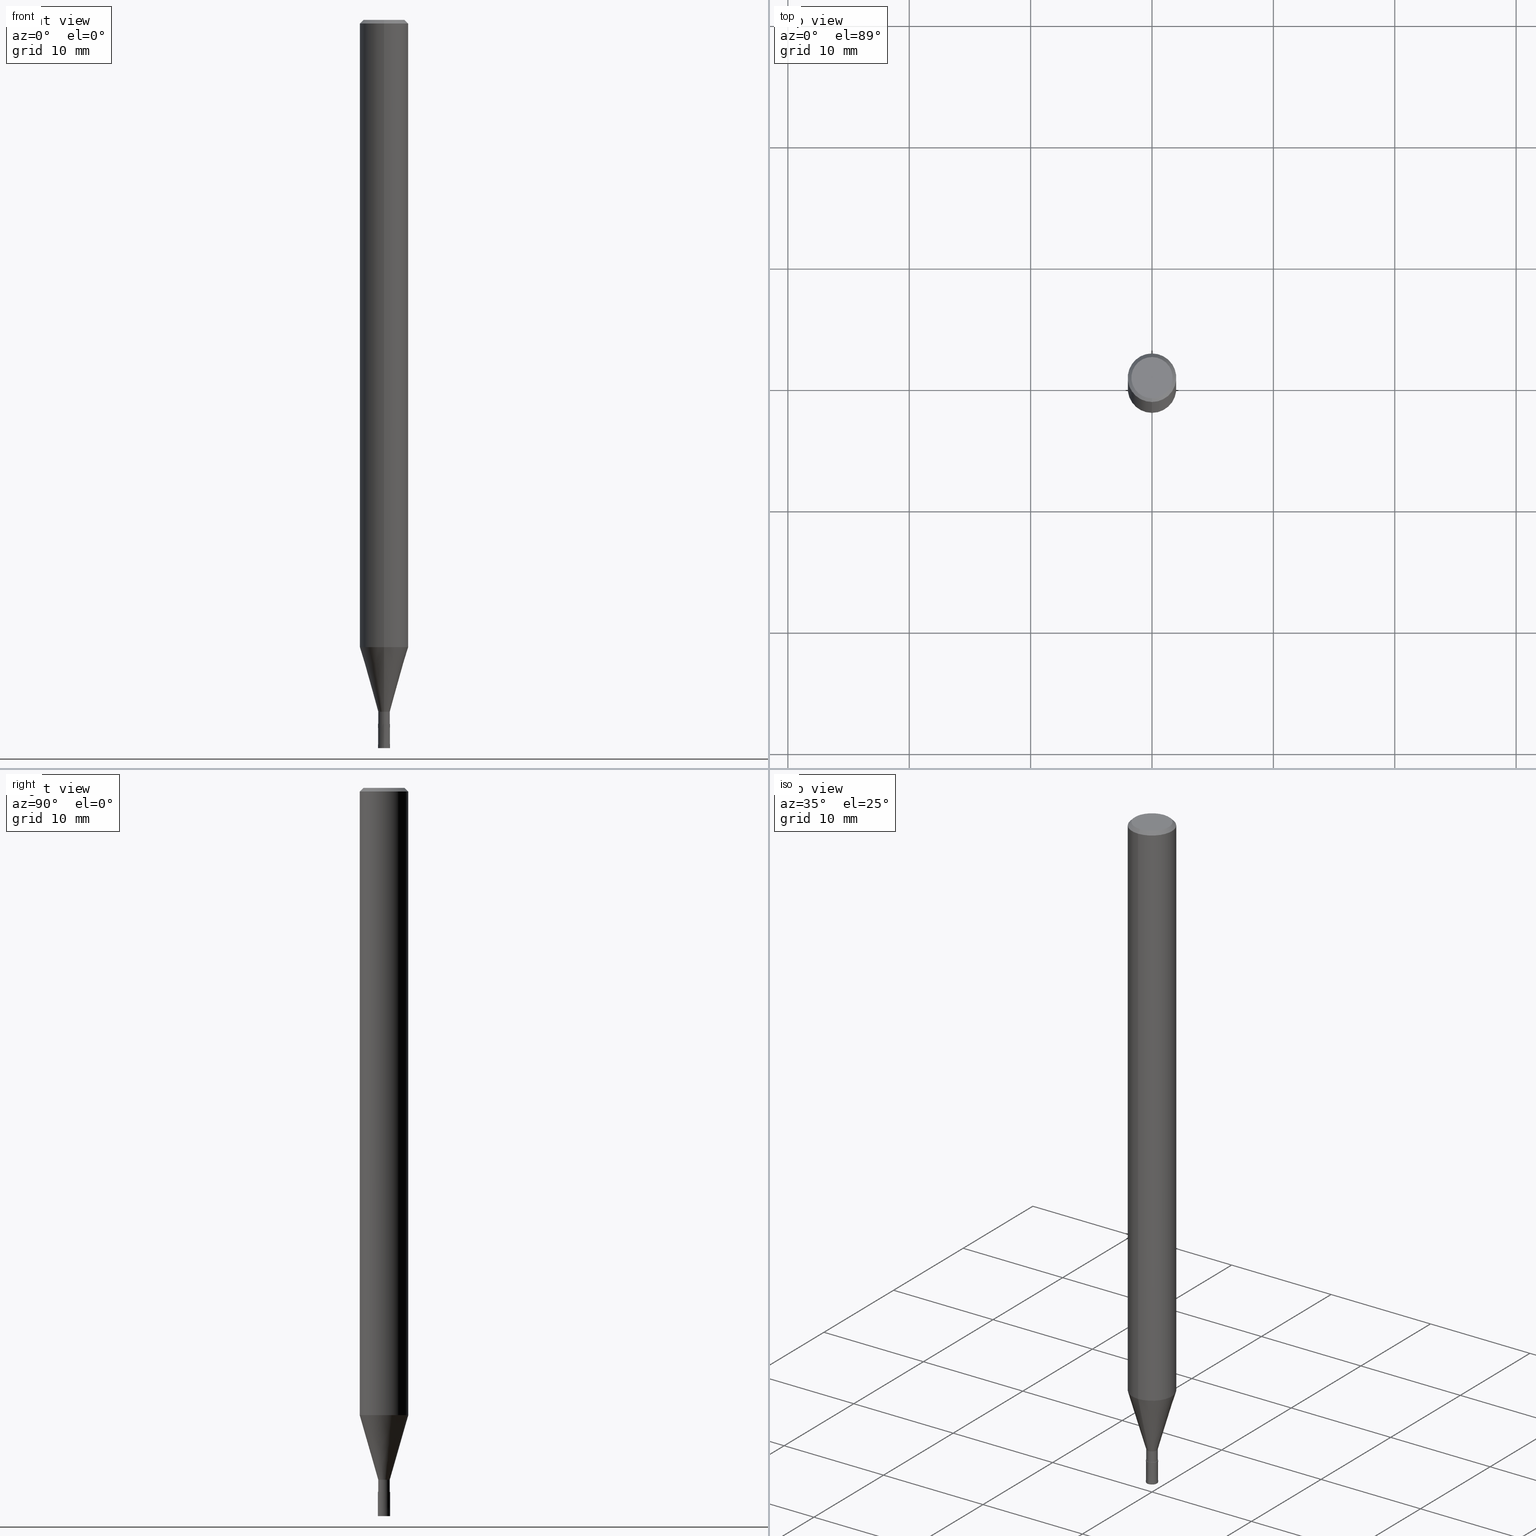
[diagram: canonical four-view strip — front | top / right | iso, engineering-drawing reading convention]
A machine part, canonical four-view strip (front | top / right | iso — engineering-drawing reading convention). The complete STEP part file that produces these views, byte-faithful:
ISO-10303-21;
HEADER;
FILE_DESCRIPTION(('no description'),'unknown implementation level');
FILE_NAME('DLC-AZS3010-030-Huellk.stp','  ',('CIMSOURCE GmbH'),('CADClick - KiM GmbH - www.kimweb.de'),'unknown preprocess','ACIS','unknown authorization');
FILE_SCHEMA(('automotive_design'));
ENDSEC;
DATA;
#1=MECHANICAL_DESIGN_GEOMETRIC_PRESENTATION_REPRESENTATION(' ',(#14,#15,#16,#17,#18,#19,#20,#21,#22,#23,#24,#25,#26,#27,#28,#29,#30,#31,#32,#33,#34,#35,#36,#37,#38,#39,#40,#41,#42,#43,#44,#45,#46,#47,#48,#49,#50,#51,#52,#53,#54,#55,#56,#57,#58,#59,#60,#61,#62,#63,#64,#65,#66,#67,#68,#69,#70,#71,#72),#10);
#2=PRODUCT_DEFINITION_CONTEXT('',#73,'design');
#3=APPLICATION_PROTOCOL_DEFINITION('INTERNATIONAL STANDARD','automotive_design',1994,#73);
#4=PRODUCT_CATEGORY_RELATIONSHIP('NONE','NONE',#74,#75);
#5=SHAPE_DEFINITION_REPRESENTATION(#76,#77);
#6=PRODUCT_DEFINITION_CONTEXT('',#78,'design');
#7=APPLICATION_PROTOCOL_DEFINITION('INTERNATIONAL STANDARD','automotive_design',1994,#78);
#8=PRODUCT_CATEGORY_RELATIONSHIP('NONE','NONE',#79,#80);
#9=SHAPE_DEFINITION_REPRESENTATION(#81,#82);
#10= (GEOMETRIC_REPRESENTATION_CONTEXT(3)GLOBAL_UNCERTAINTY_ASSIGNED_CONTEXT((#85))GLOBAL_UNIT_ASSIGNED_CONTEXT((#87,#88,#89))REPRESENTATION_CONTEXT('NONE','WORKSPACE'));
#14=STYLED_ITEM('',(#91),#92);
#15=STYLED_ITEM('',(#93),#94);
#16=STYLED_ITEM('',(#95),#96);
#17=STYLED_ITEM('',(#97),#98);
#18=STYLED_ITEM('',(#99),#100);
#19=STYLED_ITEM('',(#101),#102);
#20=STYLED_ITEM('',(#103),#104);
#21=STYLED_ITEM('',(#105),#106);
#22=STYLED_ITEM('',(#107),#108);
#23=STYLED_ITEM('',(#109),#110);
#24=STYLED_ITEM('',(#111),#112);
#25=STYLED_ITEM('',(#113),#114);
#26=STYLED_ITEM('',(#115),#116);
#27=STYLED_ITEM('',(#117),#118);
#28=STYLED_ITEM('',(#119),#120);
#29=STYLED_ITEM('',(#121),#122);
#30=STYLED_ITEM('',(#123),#124);
#31=STYLED_ITEM('',(#125),#126);
#32=STYLED_ITEM('',(#127),#128);
#33=STYLED_ITEM('',(#129),#130);
#34=STYLED_ITEM('',(#131),#132);
#35=STYLED_ITEM('',(#133),#134);
#36=STYLED_ITEM('',(#135),#136);
#37=STYLED_ITEM('',(#137),#138);
#38=STYLED_ITEM('',(#139),#140);
#39=STYLED_ITEM('',(#141),#142);
#40=STYLED_ITEM('',(#143),#144);
#41=STYLED_ITEM('',(#145),#146);
#42=STYLED_ITEM('',(#147),#148);
#43=STYLED_ITEM('',(#149),#150);
#44=STYLED_ITEM('',(#151),#152);
#45=STYLED_ITEM('',(#153),#154);
#46=STYLED_ITEM('',(#155),#156);
#47=STYLED_ITEM('',(#157),#158);
#48=STYLED_ITEM('',(#159),#160);
#49=STYLED_ITEM('',(#161),#162);
#50=STYLED_ITEM('',(#163),#164);
#51=STYLED_ITEM('',(#165),#166);
#52=STYLED_ITEM('',(#167),#168);
#53=STYLED_ITEM('',(#169),#170);
#54=STYLED_ITEM('',(#171),#172);
#55=STYLED_ITEM('',(#173),#174);
#56=STYLED_ITEM('',(#175),#176);
#57=STYLED_ITEM('',(#177),#178);
#58=STYLED_ITEM('',(#179),#180);
#59=STYLED_ITEM('',(#181),#182);
#60=STYLED_ITEM('',(#183),#184);
#61=STYLED_ITEM('',(#185),#186);
#62=STYLED_ITEM('',(#187),#188);
#63=STYLED_ITEM('',(#189),#190);
#64=STYLED_ITEM('',(#191),#192);
#65=STYLED_ITEM('',(#193),#194);
#66=STYLED_ITEM('',(#195),#196);
#67=STYLED_ITEM('',(#197),#198);
#68=STYLED_ITEM('',(#199),#200);
#69=STYLED_ITEM('',(#201),#202);
#70=STYLED_ITEM('',(#203),#204);
#71=STYLED_ITEM('',(#205),#206);
#72=STYLED_ITEM('',(#207),#208);
#73=APPLICATION_CONTEXT(' ');
#74=PRODUCT_CATEGORY('part','NONE');
#75=PRODUCT_RELATED_PRODUCT_CATEGORY('detail',' ',(#209));
#76=PRODUCT_DEFINITION_SHAPE('NONE','NONE',#210);
#77=ADVANCED_BREP_SHAPE_REPRESENTATION('1',(#132,#211),#10);
#78=APPLICATION_CONTEXT(' ');
#79=PRODUCT_CATEGORY('part','NONE');
#80=PRODUCT_RELATED_PRODUCT_CATEGORY('detail',' ',(#212));
#81=PRODUCT_DEFINITION_SHAPE('NONE','NONE',#213);
#82=ADVANCED_BREP_SHAPE_REPRESENTATION('2',(#118,#214),#10);
#85=UNCERTAINTY_MEASURE_WITH_UNIT(LENGTH_MEASURE(1.0E-006),#87,'','');
#87= (CONVERSION_BASED_UNIT('MILLIMETRE',#217)LENGTH_UNIT()NAMED_UNIT(#220));
#88= (NAMED_UNIT(#222)PLANE_ANGLE_UNIT()SI_UNIT($,.RADIAN.));
#89= (NAMED_UNIT(#222)SOLID_ANGLE_UNIT()SI_UNIT($,.STERADIAN.));
#91=PRESENTATION_STYLE_ASSIGNMENT((#228));
#92=ADVANCED_FACE('',(#229),#230,.T.);
#93=PRESENTATION_STYLE_ASSIGNMENT((#231));
#94=ADVANCED_FACE('',(#232),#233,.T.);
#95=PRESENTATION_STYLE_ASSIGNMENT((#234));
#96=EDGE_CURVE('',#140,#158,#235,.T.);
#97=PRESENTATION_STYLE_ASSIGNMENT((#236));
#98=EDGE_CURVE('',#134,#122,#237,.T.);
#99=PRESENTATION_STYLE_ASSIGNMENT((#238));
#100=VERTEX_POINT('',#239);
#101=PRESENTATION_STYLE_ASSIGNMENT((#240));
#102=ADVANCED_FACE('',(#241),#242,.T.);
#103=PRESENTATION_STYLE_ASSIGNMENT((#243));
#104=EDGE_CURVE('',#130,#208,#244,.T.);
#105=PRESENTATION_STYLE_ASSIGNMENT((#245));
#106=EDGE_CURVE('',#172,#100,#246,.T.);
#107=PRESENTATION_STYLE_ASSIGNMENT((#247));
#108=VERTEX_POINT('',#248);
#109=PRESENTATION_STYLE_ASSIGNMENT((#249));
#110=EDGE_CURVE('',#160,#124,#250,.T.);
#111=PRESENTATION_STYLE_ASSIGNMENT((#251));
#112=VERTEX_POINT('',#252);
#113=PRESENTATION_STYLE_ASSIGNMENT((#253));
#114=EDGE_CURVE('',#124,#148,#254,.T.);
#115=PRESENTATION_STYLE_ASSIGNMENT((#255));
#116=EDGE_CURVE('',#108,#170,#256,.T.);
#117=PRESENTATION_STYLE_ASSIGNMENT((#257));
#118=MANIFOLD_SOLID_BREP('2',#258);
#119=PRESENTATION_STYLE_ASSIGNMENT((#259));
#120=ADVANCED_FACE('',(#260),#261,.T.);
#121=PRESENTATION_STYLE_ASSIGNMENT((#262));
#122=VERTEX_POINT('',#263);
#123=PRESENTATION_STYLE_ASSIGNMENT((#264));
#124=VERTEX_POINT('',#265);
#125=PRESENTATION_STYLE_ASSIGNMENT((#266));
#126=VERTEX_POINT('',#267);
#127=PRESENTATION_STYLE_ASSIGNMENT((#268));
#128=ADVANCED_FACE('',(#269),#270,.T.);
#129=PRESENTATION_STYLE_ASSIGNMENT((#271));
#130=VERTEX_POINT('',#272);
#131=PRESENTATION_STYLE_ASSIGNMENT((#273));
#132=MANIFOLD_SOLID_BREP('1',#274);
#133=PRESENTATION_STYLE_ASSIGNMENT((#275));
#134=VERTEX_POINT('',#276);
#135=PRESENTATION_STYLE_ASSIGNMENT((#277));
#136=EDGE_CURVE('',#148,#208,#278,.T.);
#137=PRESENTATION_STYLE_ASSIGNMENT((#279));
#138=ADVANCED_FACE('',(#280),#281,.T.);
#139=PRESENTATION_STYLE_ASSIGNMENT((#282));
#140=VERTEX_POINT('',#283);
#141=PRESENTATION_STYLE_ASSIGNMENT((#284));
#142=ADVANCED_FACE('',(#285,#286),#287,.T.);
#143=PRESENTATION_STYLE_ASSIGNMENT((#288));
#144=EDGE_CURVE('',#112,#166,#289,.T.);
#145=PRESENTATION_STYLE_ASSIGNMENT((#290));
#146=EDGE_CURVE('',#158,#140,#291,.T.);
#147=PRESENTATION_STYLE_ASSIGNMENT((#292));
#148=VERTEX_POINT('',#293);
#149=PRESENTATION_STYLE_ASSIGNMENT((#294));
#150=EDGE_CURVE('',#124,#160,#295,.T.);
#151=PRESENTATION_STYLE_ASSIGNMENT((#296));
#152=EDGE_CURVE('',#170,#108,#297,.T.);
#153=PRESENTATION_STYLE_ASSIGNMENT((#298));
#154=EDGE_CURVE('',#172,#158,#299,.T.);
#155=PRESENTATION_STYLE_ASSIGNMENT((#300));
#156=ADVANCED_FACE('',(#301),#302,.T.);
#157=PRESENTATION_STYLE_ASSIGNMENT((#303));
#158=VERTEX_POINT('',#304);
#159=PRESENTATION_STYLE_ASSIGNMENT((#305));
#160=VERTEX_POINT('',#306);
#161=PRESENTATION_STYLE_ASSIGNMENT((#307));
#162=EDGE_CURVE('',#122,#172,#308,.T.);
#163=PRESENTATION_STYLE_ASSIGNMENT((#309));
#164=ADVANCED_FACE('',(#310),#311,.T.);
#165=PRESENTATION_STYLE_ASSIGNMENT((#312));
#166=VERTEX_POINT('',#313);
#167=PRESENTATION_STYLE_ASSIGNMENT((#314));
#168=ADVANCED_FACE('',(#315),#316,.T.);
#169=PRESENTATION_STYLE_ASSIGNMENT((#317));
#170=VERTEX_POINT('',#318);
#171=PRESENTATION_STYLE_ASSIGNMENT((#319));
#172=VERTEX_POINT('',#320);
#173=PRESENTATION_STYLE_ASSIGNMENT((#321));
#174=EDGE_CURVE('',#140,#100,#322,.T.);
#175=PRESENTATION_STYLE_ASSIGNMENT((#323));
#176=ADVANCED_FACE('',(#324),#325,.T.);
#177=PRESENTATION_STYLE_ASSIGNMENT((#326));
#178=EDGE_CURVE('',#126,#148,#327,.T.);
#179=PRESENTATION_STYLE_ASSIGNMENT((#328));
#180=EDGE_CURVE('',#148,#126,#329,.T.);
#181=PRESENTATION_STYLE_ASSIGNMENT((#330));
#182=EDGE_CURVE('',#112,#170,#331,.T.);
#183=PRESENTATION_STYLE_ASSIGNMENT((#332));
#184=EDGE_CURVE('',#166,#112,#333,.T.);
#185=PRESENTATION_STYLE_ASSIGNMENT((#334));
#186=EDGE_CURVE('',#126,#160,#335,.T.);
#187=PRESENTATION_STYLE_ASSIGNMENT((#336));
#188=ADVANCED_FACE('',(#337),#338,.T.);
#189=PRESENTATION_STYLE_ASSIGNMENT((#339));
#190=ADVANCED_FACE('',(#340),#341,.T.);
#191=PRESENTATION_STYLE_ASSIGNMENT((#342));
#192=EDGE_CURVE('',#100,#134,#343,.T.);
#193=PRESENTATION_STYLE_ASSIGNMENT((#344));
#194=EDGE_CURVE('',#122,#134,#345,.T.);
#195=PRESENTATION_STYLE_ASSIGNMENT((#346));
#196=EDGE_CURVE('',#130,#126,#347,.T.);
#197=PRESENTATION_STYLE_ASSIGNMENT((#348));
#198=EDGE_CURVE('',#100,#172,#349,.T.);
#199=PRESENTATION_STYLE_ASSIGNMENT((#350));
#200=ADVANCED_FACE('',(#351),#352,.T.);
#201=PRESENTATION_STYLE_ASSIGNMENT((#353));
#202=EDGE_CURVE('',#208,#130,#354,.T.);
#203=PRESENTATION_STYLE_ASSIGNMENT((#355));
#204=ADVANCED_FACE('',(#356),#357,.T.);
#205=PRESENTATION_STYLE_ASSIGNMENT((#358));
#206=EDGE_CURVE('',#108,#166,#359,.T.);
#207=PRESENTATION_STYLE_ASSIGNMENT((#360));
#208=VERTEX_POINT('',#361);
#209=PRODUCT('1','1','PART-1-DESC',(#362));
#210=PRODUCT_DEFINITION('NONE','NONE',#363,#2);
#211=AXIS2_PLACEMENT_3D('',#364,#365,#366);
#212=PRODUCT('2','2','PART-2-DESC',(#367));
#213=PRODUCT_DEFINITION('NONE','NONE',#368,#6);
#214=AXIS2_PLACEMENT_3D('',#369,#370,#371);
#217=LENGTH_MEASURE_WITH_UNIT(LENGTH_MEASURE(1.0),#372);
#220=DIMENSIONAL_EXPONENTS(1.0,0.0,0.0,0.0,0.0,0.0,0.0);
#222=DIMENSIONAL_EXPONENTS(0.0,0.0,0.0,0.0,0.0,0.0,0.0);
#228=SURFACE_STYLE_USAGE(.BOTH.,#373);
#229=FACE_OUTER_BOUND('',#374,.T.);
#230=PLANE('',#375);
#231=SURFACE_STYLE_USAGE(.BOTH.,#376);
#232=FACE_OUTER_BOUND('',#377,.T.);
#233=CONICAL_SURFACE('',#378,1.85,0.785398163397453);
#234=CURVE_STYLE('',#379,POSITIVE_LENGTH_MEASURE(1.0E-006),#380);
#235=CIRCLE('',#381,0.47495);
#236=CURVE_STYLE('',#382,POSITIVE_LENGTH_MEASURE(1.0E-006),#383);
#237=CIRCLE('',#384,1.99995);
#238=POINT_STYLE(' ',#385,POSITIVE_LENGTH_MEASURE(1.0E-006),#386);
#239=CARTESIAN_POINT('',(5.81626787747938E-017,-0.47495,-57.0));
#240=SURFACE_STYLE_USAGE(.BOTH.,#387);
#241=FACE_OUTER_BOUND('',#388,.T.);
#242=PLANE('',#389);
#243=CURVE_STYLE('',#390,POSITIVE_LENGTH_MEASURE(1.0E-006),#391);
#244=CIRCLE('',#392,1.7);
#245=CURVE_STYLE('',#393,POSITIVE_LENGTH_MEASURE(1.0E-006),#394);
#246=CIRCLE('',#395,0.47495);
#247=POINT_STYLE(' ',#396,POSITIVE_LENGTH_MEASURE(1.0E-006),#397);
#248=CARTESIAN_POINT('',(0.0,0.4999,-58.0));
#249=CURVE_STYLE('',#398,POSITIVE_LENGTH_MEASURE(1.0E-006),#399);
#250=CIRCLE('',#400,2.0);
#251=POINT_STYLE(' ',#401,POSITIVE_LENGTH_MEASURE(1.0E-006),#402);
#252=CARTESIAN_POINT('',(6.12303176911189E-017,-0.5,-60.0));
#253=CURVE_STYLE('',#403,POSITIVE_LENGTH_MEASURE(1.0E-006),#404);
#254=LINE('',#405,#406);
#255=CURVE_STYLE('',#407,POSITIVE_LENGTH_MEASURE(1.0E-006),#408);
#256=CIRCLE('',#409,0.4999);
#257=SURFACE_STYLE_USAGE(.BOTH.,#410);
#258=CLOSED_SHELL('',(#204,#200,#188,#92));
#259=SURFACE_STYLE_USAGE(.BOTH.,#411);
#260=FACE_OUTER_BOUND('',#412,.T.);
#261=CONICAL_SURFACE('',#413,1.85,0.785398163397453);
#262=POINT_STYLE(' ',#414,POSITIVE_LENGTH_MEASURE(1.0E-006),#415);
#263=CARTESIAN_POINT('',(0.0,1.99995,-51.682));
#264=POINT_STYLE(' ',#416,POSITIVE_LENGTH_MEASURE(1.0E-006),#417);
#265=CARTESIAN_POINT('',(2.44921270764475E-016,-2.0,-51.682));
#266=POINT_STYLE(' ',#418,POSITIVE_LENGTH_MEASURE(1.0E-006),#419);
#267=CARTESIAN_POINT('',(0.0,2.0,-0.299999999999997));
#268=SURFACE_STYLE_USAGE(.BOTH.,#420);
#269=FACE_OUTER_BOUND('',#421,.T.);
#270=CONICAL_SURFACE('',#422,1.23745,0.279267977304115);
#271=POINT_STYLE(' ',#423,POSITIVE_LENGTH_MEASURE(1.0E-006),#424);
#272=CARTESIAN_POINT('',(0.0,1.7,0.0));
#273=SURFACE_STYLE_USAGE(.BOTH.,#425);
#274=CLOSED_SHELL('',(#190,#156,#138,#94,#142,#102,#120,#176,#128,#164,#168));
#275=POINT_STYLE(' ',#426,POSITIVE_LENGTH_MEASURE(1.0E-006),#427);
#276=CARTESIAN_POINT('',(2.44915147732706E-016,-1.99995,-51.682));
#277=CURVE_STYLE('',#428,POSITIVE_LENGTH_MEASURE(1.0E-006),#429);
#278=LINE('',#430,#431);
#279=SURFACE_STYLE_USAGE(.BOTH.,#432);
#280=FACE_OUTER_BOUND('',#433,.T.);
#281=CYLINDRICAL_SURFACE('',#434,2.0);
#282=POINT_STYLE(' ',#435,POSITIVE_LENGTH_MEASURE(1.0E-006),#436);
#283=CARTESIAN_POINT('',(5.81626787747938E-017,-0.47495,-58.0));
#284=SURFACE_STYLE_USAGE(.BOTH.,#437);
#285=FACE_OUTER_BOUND('',#438,.T.);
#286=FACE_BOUND('',#439,.T.);
#287=PLANE('',#440);
#288=CURVE_STYLE('',#441,POSITIVE_LENGTH_MEASURE(1.0E-006),#442);
#289=CIRCLE('',#443,0.5);
#290=CURVE_STYLE('',#444,POSITIVE_LENGTH_MEASURE(1.0E-006),#445);
#291=CIRCLE('',#446,0.47495);
#292=POINT_STYLE(' ',#447,POSITIVE_LENGTH_MEASURE(1.0E-006),#448);
#293=CARTESIAN_POINT('',(2.44921270764475E-016,-2.0,-0.299999999999997));
#294=CURVE_STYLE('',#449,POSITIVE_LENGTH_MEASURE(1.0E-006),#450);
#295=CIRCLE('',#451,2.0);
#296=CURVE_STYLE('',#452,POSITIVE_LENGTH_MEASURE(1.0E-006),#453);
#297=CIRCLE('',#454,0.4999);
#298=CURVE_STYLE('',#455,POSITIVE_LENGTH_MEASURE(1.0E-006),#456);
#299=LINE('',#457,#458);
#300=SURFACE_STYLE_USAGE(.BOTH.,#459);
#301=FACE_OUTER_BOUND('',#460,.T.);
#302=CONICAL_SURFACE('',#461,1.23745,0.279267977304115);
#303=POINT_STYLE(' ',#462,POSITIVE_LENGTH_MEASURE(1.0E-006),#463);
#304=CARTESIAN_POINT('',(0.0,0.47495,-58.0));
#305=POINT_STYLE(' ',#464,POSITIVE_LENGTH_MEASURE(1.0E-006),#465);
#306=CARTESIAN_POINT('',(0.0,2.0,-51.682));
#307=CURVE_STYLE('',#466,POSITIVE_LENGTH_MEASURE(1.0E-006),#467);
#308=LINE('',#468,#469);
#309=SURFACE_STYLE_USAGE(.BOTH.,#470);
#310=FACE_OUTER_BOUND('',#471,.T.);
#311=CYLINDRICAL_SURFACE('',#472,0.47495);
#312=POINT_STYLE(' ',#473,POSITIVE_LENGTH_MEASURE(1.0E-006),#474);
#313=CARTESIAN_POINT('',(0.0,0.5,-60.0));
#314=SURFACE_STYLE_USAGE(.BOTH.,#475);
#315=FACE_OUTER_BOUND('',#476,.T.);
#316=PLANE('',#477);
#317=POINT_STYLE(' ',#478,POSITIVE_LENGTH_MEASURE(1.0E-006),#479);
#318=CARTESIAN_POINT('',(6.12180716275807E-017,-0.4999,-58.0));
#319=POINT_STYLE(' ',#480,POSITIVE_LENGTH_MEASURE(1.0E-006),#481);
#320=CARTESIAN_POINT('',(0.0,0.47495,-57.0));
#321=CURVE_STYLE('',#482,POSITIVE_LENGTH_MEASURE(1.0E-006),#483);
#322=LINE('',#484,#485);
#323=SURFACE_STYLE_USAGE(.BOTH.,#486);
#324=FACE_OUTER_BOUND('',#487,.T.);
#325=CYLINDRICAL_SURFACE('',#488,2.0);
#326=CURVE_STYLE('',#489,POSITIVE_LENGTH_MEASURE(1.0E-006),#490);
#327=CIRCLE('',#491,2.0);
#328=CURVE_STYLE('',#492,POSITIVE_LENGTH_MEASURE(1.0E-006),#493);
#329=CIRCLE('',#494,2.0);
#330=CURVE_STYLE('',#495,POSITIVE_LENGTH_MEASURE(1.0E-006),#496);
#331=LINE('',#497,#498);
#332=CURVE_STYLE('',#499,POSITIVE_LENGTH_MEASURE(1.0E-006),#500);
#333=CIRCLE('',#501,0.5);
#334=CURVE_STYLE('',#502,POSITIVE_LENGTH_MEASURE(1.0E-006),#503);
#335=LINE('',#504,#505);
#336=SURFACE_STYLE_USAGE(.BOTH.,#506);
#337=FACE_OUTER_BOUND('',#507,.T.);
#338=CONICAL_SURFACE('',#508,0.49995,4.99999999583278E-005);
#339=SURFACE_STYLE_USAGE(.BOTH.,#509);
#340=FACE_OUTER_BOUND('',#510,.T.);
#341=CYLINDRICAL_SURFACE('',#511,0.47495);
#342=CURVE_STYLE('',#512,POSITIVE_LENGTH_MEASURE(1.0E-006),#513);
#343=LINE('',#514,#515);
#344=CURVE_STYLE('',#516,POSITIVE_LENGTH_MEASURE(1.0E-006),#517);
#345=CIRCLE('',#518,1.99995);
#346=CURVE_STYLE('',#519,POSITIVE_LENGTH_MEASURE(1.0E-006),#520);
#347=LINE('',#521,#522);
#348=CURVE_STYLE('',#523,POSITIVE_LENGTH_MEASURE(1.0E-006),#524);
#349=CIRCLE('',#525,0.47495);
#350=SURFACE_STYLE_USAGE(.BOTH.,#526);
#351=FACE_OUTER_BOUND('',#527,.T.);
#352=PLANE('',#528);
#353=CURVE_STYLE('',#529,POSITIVE_LENGTH_MEASURE(1.0E-006),#530);
#354=CIRCLE('',#531,1.7);
#355=SURFACE_STYLE_USAGE(.BOTH.,#532);
#356=FACE_OUTER_BOUND('',#533,.T.);
#357=CONICAL_SURFACE('',#534,0.49995,4.99999999583278E-005);
#358=CURVE_STYLE('',#535,POSITIVE_LENGTH_MEASURE(1.0E-006),#536);
#359=LINE('',#537,#538);
#360=POINT_STYLE(' ',#539,POSITIVE_LENGTH_MEASURE(1.0E-006),#540);
#361=CARTESIAN_POINT('',(2.08183080149804E-016,-1.7,0.0));
#362=PRODUCT_CONTEXT('',#73,'mechanical');
#363=PRODUCT_DEFINITION_FORMATION_WITH_SPECIFIED_SOURCE(' ','NONE',#209,.NOT_KNOWN.);
#364=CARTESIAN_POINT('',(0.0,0.0,0.0));
#365=DIRECTION('',(0.0,0.0,1.0));
#366=DIRECTION('',(1.0,0.0,0.0));
#367=PRODUCT_CONTEXT('',#78,'mechanical');
#368=PRODUCT_DEFINITION_FORMATION_WITH_SPECIFIED_SOURCE(' ','NONE',#212,.NOT_KNOWN.);
#369=CARTESIAN_POINT('',(0.0,0.0,0.0));
#370=DIRECTION('',(0.0,0.0,1.0));
#371=DIRECTION('',(1.0,0.0,0.0));
#372= (NAMED_UNIT(#220)LENGTH_UNIT()SI_UNIT(.MILLI.,.METRE.));
#373=SURFACE_SIDE_STYLE('',(#542));
#374=EDGE_LOOP('',(#543,#544));
#375=AXIS2_PLACEMENT_3D('',#545,#546,#547);
#376=SURFACE_SIDE_STYLE('',(#548));
#377=EDGE_LOOP('',(#549,#550,#551,#552));
#378=AXIS2_PLACEMENT_3D('',#553,#554,#555);
#379=DRAUGHTING_PRE_DEFINED_CURVE_FONT('continuous');
#380=COLOUR_RGB('',0.498039215803146,0.498039215803146,0.498039215803146);
#381=AXIS2_PLACEMENT_3D('',#556,#557,#558);
#382=DRAUGHTING_PRE_DEFINED_CURVE_FONT('continuous');
#383=COLOUR_RGB('',0.498039215803146,0.498039215803146,0.498039215803146);
#384=AXIS2_PLACEMENT_3D('',#559,#560,#561);
#385=PRE_DEFINED_MARKER('');
#386=COLOUR_RGB('',0.498039215803146,0.498039215803146,0.498039215803146);
#387=SURFACE_SIDE_STYLE('',(#562));
#388=EDGE_LOOP('',(#563,#564));
#389=AXIS2_PLACEMENT_3D('',#565,#566,#567);
#390=DRAUGHTING_PRE_DEFINED_CURVE_FONT('continuous');
#391=COLOUR_RGB('',0.498039215803146,0.498039215803146,0.498039215803146);
#392=AXIS2_PLACEMENT_3D('',#568,#569,#570);
#393=DRAUGHTING_PRE_DEFINED_CURVE_FONT('continuous');
#394=COLOUR_RGB('',0.498039215803146,0.498039215803146,0.498039215803146);
#395=AXIS2_PLACEMENT_3D('',#571,#572,#573);
#396=PRE_DEFINED_MARKER('');
#397=COLOUR_RGB('',0.800000011920929,0.800000011920929,0.800000011920929);
#398=DRAUGHTING_PRE_DEFINED_CURVE_FONT('continuous');
#399=COLOUR_RGB('',0.498039215803146,0.498039215803146,0.498039215803146);
#400=AXIS2_PLACEMENT_3D('',#574,#575,#576);
#401=PRE_DEFINED_MARKER('');
#402=COLOUR_RGB('',0.800000011920929,0.800000011920929,0.800000011920929);
#403=DRAUGHTING_PRE_DEFINED_CURVE_FONT('continuous');
#404=COLOUR_RGB('',0.498039215803146,0.498039215803146,0.498039215803146);
#405=CARTESIAN_POINT('',(2.44921270764475E-016,-2.0,-25.991));
#406=VECTOR('',#577,1.0);
#407=DRAUGHTING_PRE_DEFINED_CURVE_FONT('continuous');
#408=COLOUR_RGB('',0.800000011920929,0.800000011920929,0.800000011920929);
#409=AXIS2_PLACEMENT_3D('',#578,#579,#580);
#410=SURFACE_SIDE_STYLE('',(#581));
#411=SURFACE_SIDE_STYLE('',(#582));
#412=EDGE_LOOP('',(#583,#584,#585,#586));
#413=AXIS2_PLACEMENT_3D('',#587,#588,#589);
#414=PRE_DEFINED_MARKER('');
#415=COLOUR_RGB('',0.498039215803146,0.498039215803146,0.498039215803146);
#416=PRE_DEFINED_MARKER('');
#417=COLOUR_RGB('',0.498039215803146,0.498039215803146,0.498039215803146);
#418=PRE_DEFINED_MARKER('');
#419=COLOUR_RGB('',0.498039215803146,0.498039215803146,0.498039215803146);
#420=SURFACE_SIDE_STYLE('',(#590));
#421=EDGE_LOOP('',(#591,#592,#593,#594));
#422=AXIS2_PLACEMENT_3D('',#595,#596,#597);
#423=PRE_DEFINED_MARKER('');
#424=COLOUR_RGB('',0.498039215803146,0.498039215803146,0.498039215803146);
#425=SURFACE_SIDE_STYLE('',(#598));
#426=PRE_DEFINED_MARKER('');
#427=COLOUR_RGB('',0.498039215803146,0.498039215803146,0.498039215803146);
#428=DRAUGHTING_PRE_DEFINED_CURVE_FONT('continuous');
#429=COLOUR_RGB('',0.498039215803146,0.498039215803146,0.498039215803146);
#430=CARTESIAN_POINT('',(2.2655217545714E-016,-1.85,-0.149999999999999));
#431=VECTOR('',#599,1.0);
#432=SURFACE_SIDE_STYLE('',(#600));
#433=EDGE_LOOP('',(#601,#602,#603,#604));
#434=AXIS2_PLACEMENT_3D('',#605,#606,#607);
#435=PRE_DEFINED_MARKER('');
#436=COLOUR_RGB('',0.498039215803146,0.498039215803146,0.498039215803146);
#437=SURFACE_SIDE_STYLE('',(#608));
#438=EDGE_LOOP('',(#609,#610));
#439=EDGE_LOOP('',(#611,#612));
#440=AXIS2_PLACEMENT_3D('',#613,#614,#615);
#441=DRAUGHTING_PRE_DEFINED_CURVE_FONT('continuous');
#442=COLOUR_RGB('',0.800000011920929,0.800000011920929,0.800000011920929);
#443=AXIS2_PLACEMENT_3D('',#616,#617,#618);
#444=DRAUGHTING_PRE_DEFINED_CURVE_FONT('continuous');
#445=COLOUR_RGB('',0.498039215803146,0.498039215803146,0.498039215803146);
#446=AXIS2_PLACEMENT_3D('',#619,#620,#621);
#447=PRE_DEFINED_MARKER('');
#448=COLOUR_RGB('',0.498039215803146,0.498039215803146,0.498039215803146);
#449=DRAUGHTING_PRE_DEFINED_CURVE_FONT('continuous');
#450=COLOUR_RGB('',0.498039215803146,0.498039215803146,0.498039215803146);
#451=AXIS2_PLACEMENT_3D('',#622,#623,#624);
#452=DRAUGHTING_PRE_DEFINED_CURVE_FONT('continuous');
#453=COLOUR_RGB('',0.800000011920929,0.800000011920929,0.800000011920929);
#454=AXIS2_PLACEMENT_3D('',#625,#626,#627);
#455=DRAUGHTING_PRE_DEFINED_CURVE_FONT('continuous');
#456=COLOUR_RGB('',0.498039215803146,0.498039215803146,0.498039215803146);
#457=CARTESIAN_POINT('',(-5.81626787747938E-017,0.47495,-57.5));
#458=VECTOR('',#628,1.0);
#459=SURFACE_SIDE_STYLE('',(#629));
#460=EDGE_LOOP('',(#630,#631,#632,#633));
#461=AXIS2_PLACEMENT_3D('',#634,#635,#636);
#462=PRE_DEFINED_MARKER('');
#463=COLOUR_RGB('',0.498039215803146,0.498039215803146,0.498039215803146);
#464=PRE_DEFINED_MARKER('');
#465=COLOUR_RGB('',0.498039215803146,0.498039215803146,0.498039215803146);
#466=DRAUGHTING_PRE_DEFINED_CURVE_FONT('continuous');
#467=COLOUR_RGB('',0.498039215803146,0.498039215803146,0.498039215803146);
#468=CARTESIAN_POINT('',(-1.5153891325375E-016,1.23745,-54.341));
#469=VECTOR('',#637,1.0);
#470=SURFACE_SIDE_STYLE('',(#638));
#471=EDGE_LOOP('',(#639,#640,#641,#642));
#472=AXIS2_PLACEMENT_3D('',#643,#644,#645);
#473=PRE_DEFINED_MARKER('');
#474=COLOUR_RGB('',0.800000011920929,0.800000011920929,0.800000011920929);
#475=SURFACE_SIDE_STYLE('',(#646));
#476=EDGE_LOOP('',(#647,#648));
#477=AXIS2_PLACEMENT_3D('',#649,#650,#651);
#478=PRE_DEFINED_MARKER('');
#479=COLOUR_RGB('',0.800000011920929,0.800000011920929,0.800000011920929);
#480=PRE_DEFINED_MARKER('');
#481=COLOUR_RGB('',0.498039215803146,0.498039215803146,0.498039215803146);
#482=DRAUGHTING_PRE_DEFINED_CURVE_FONT('continuous');
#483=COLOUR_RGB('',0.498039215803146,0.498039215803146,0.498039215803146);
#484=CARTESIAN_POINT('',(5.81626787747938E-017,-0.47495,-57.5));
#485=VECTOR('',#652,1.0);
#486=SURFACE_SIDE_STYLE('',(#653));
#487=EDGE_LOOP('',(#654,#655,#656,#657));
#488=AXIS2_PLACEMENT_3D('',#658,#659,#660);
#489=DRAUGHTING_PRE_DEFINED_CURVE_FONT('continuous');
#490=COLOUR_RGB('',0.498039215803146,0.498039215803146,0.498039215803146);
#491=AXIS2_PLACEMENT_3D('',#661,#662,#663);
#492=DRAUGHTING_PRE_DEFINED_CURVE_FONT('continuous');
#493=COLOUR_RGB('',0.498039215803146,0.498039215803146,0.498039215803146);
#494=AXIS2_PLACEMENT_3D('',#664,#665,#666);
#495=DRAUGHTING_PRE_DEFINED_CURVE_FONT('continuous');
#496=COLOUR_RGB('',0.800000011920929,0.800000011920929,0.800000011920929);
#497=CARTESIAN_POINT('',(6.12241946593498E-017,-0.49995,-59.0));
#498=VECTOR('',#667,1.0);
#499=DRAUGHTING_PRE_DEFINED_CURVE_FONT('continuous');
#500=COLOUR_RGB('',0.800000011920929,0.800000011920929,0.800000011920929);
#501=AXIS2_PLACEMENT_3D('',#668,#669,#670);
#502=DRAUGHTING_PRE_DEFINED_CURVE_FONT('continuous');
#503=COLOUR_RGB('',0.498039215803146,0.498039215803146,0.498039215803146);
#504=CARTESIAN_POINT('',(-2.44921270764475E-016,2.0,-25.991));
#505=VECTOR('',#671,1.0);
#506=SURFACE_SIDE_STYLE('',(#672));
#507=EDGE_LOOP('',(#673,#674,#675,#676));
#508=AXIS2_PLACEMENT_3D('',#677,#678,#679);
#509=SURFACE_SIDE_STYLE('',(#680));
#510=EDGE_LOOP('',(#681,#682,#683,#684));
#511=AXIS2_PLACEMENT_3D('',#685,#686,#687);
#512=DRAUGHTING_PRE_DEFINED_CURVE_FONT('continuous');
#513=COLOUR_RGB('',0.498039215803146,0.498039215803146,0.498039215803146);
#514=CARTESIAN_POINT('',(1.5153891325375E-016,-1.23745,-54.341));
#515=VECTOR('',#688,1.0);
#516=DRAUGHTING_PRE_DEFINED_CURVE_FONT('continuous');
#517=COLOUR_RGB('',0.498039215803146,0.498039215803146,0.498039215803146);
#518=AXIS2_PLACEMENT_3D('',#689,#690,#691);
#519=DRAUGHTING_PRE_DEFINED_CURVE_FONT('continuous');
#520=COLOUR_RGB('',0.498039215803146,0.498039215803146,0.498039215803146);
#521=CARTESIAN_POINT('',(-2.2655217545714E-016,1.85,-0.149999999999999));
#522=VECTOR('',#692,1.0);
#523=DRAUGHTING_PRE_DEFINED_CURVE_FONT('continuous');
#524=COLOUR_RGB('',0.498039215803146,0.498039215803146,0.498039215803146);
#525=AXIS2_PLACEMENT_3D('',#693,#694,#695);
#526=SURFACE_SIDE_STYLE('',(#696));
#527=EDGE_LOOP('',(#697,#698));
#528=AXIS2_PLACEMENT_3D('',#699,#700,#701);
#529=DRAUGHTING_PRE_DEFINED_CURVE_FONT('continuous');
#530=COLOUR_RGB('',0.498039215803146,0.498039215803146,0.498039215803146);
#531=AXIS2_PLACEMENT_3D('',#702,#703,#704);
#532=SURFACE_SIDE_STYLE('',(#705));
#533=EDGE_LOOP('',(#706,#707,#708,#709));
#534=AXIS2_PLACEMENT_3D('',#710,#711,#712);
#535=DRAUGHTING_PRE_DEFINED_CURVE_FONT('continuous');
#536=COLOUR_RGB('',0.800000011920929,0.800000011920929,0.800000011920929);
#537=CARTESIAN_POINT('',(-6.12241946593498E-017,0.49995,-59.0));
#538=VECTOR('',#713,1.0);
#539=PRE_DEFINED_MARKER('');
#540=COLOUR_RGB('',0.498039215803146,0.498039215803146,0.498039215803146);
#542=SURFACE_STYLE_FILL_AREA(#714);
#543=ORIENTED_EDGE('',*,*,#184,.T.);
#544=ORIENTED_EDGE('',*,*,#144,.T.);
#545=CARTESIAN_POINT('',(0.0,0.2475,-60.0));
#546=DIRECTION('',(0.0,0.0,-1.0));
#547=DIRECTION('',(0.0,1.0,0.0));
#548=SURFACE_STYLE_FILL_AREA(#715);
#549=ORIENTED_EDGE('',*,*,#196,.F.);
#550=ORIENTED_EDGE('',*,*,#104,.T.);
#551=ORIENTED_EDGE('',*,*,#136,.F.);
#552=ORIENTED_EDGE('',*,*,#178,.F.);
#553=CARTESIAN_POINT('',(0.0,0.0,-0.149999999999999));
#554=DIRECTION('',(0.0,-0.0,-1.0));
#555=DIRECTION('',(0.0,1.0,0.0));
#556=CARTESIAN_POINT('',(0.0,0.0,-58.0));
#557=DIRECTION('',(0.0,0.0,-1.0));
#558=DIRECTION('',(0.0,1.0,0.0));
#559=CARTESIAN_POINT('',(0.0,0.0,-51.682));
#560=DIRECTION('',(0.0,0.0,-1.0));
#561=DIRECTION('',(0.0,1.0,0.0));
#562=SURFACE_STYLE_FILL_AREA(#716);
#563=ORIENTED_EDGE('',*,*,#104,.F.);
#564=ORIENTED_EDGE('',*,*,#202,.F.);
#565=CARTESIAN_POINT('',(0.0,0.85,0.0));
#566=DIRECTION('',(-0.0,0.0,1.0));
#567=DIRECTION('',(0.0,-1.0,0.0));
#568=CARTESIAN_POINT('',(0.0,0.0,0.0));
#569=DIRECTION('',(0.0,0.0,-1.0));
#570=DIRECTION('',(0.0,1.0,0.0));
#571=CARTESIAN_POINT('',(0.0,0.0,-57.0));
#572=DIRECTION('',(0.0,0.0,-1.0));
#573=DIRECTION('',(0.0,1.0,0.0));
#574=CARTESIAN_POINT('',(0.0,0.0,-51.682));
#575=DIRECTION('',(0.0,0.0,-1.0));
#576=DIRECTION('',(0.0,1.0,0.0));
#577=DIRECTION('',(-0.0,-0.0,1.0));
#578=CARTESIAN_POINT('',(0.0,0.0,-58.0));
#579=DIRECTION('',(0.0,0.0,-1.0));
#580=DIRECTION('',(0.0,1.0,0.0));
#581=SURFACE_STYLE_FILL_AREA(#717);
#582=SURFACE_STYLE_FILL_AREA(#718);
#583=ORIENTED_EDGE('',*,*,#196,.T.);
#584=ORIENTED_EDGE('',*,*,#180,.F.);
#585=ORIENTED_EDGE('',*,*,#136,.T.);
#586=ORIENTED_EDGE('',*,*,#202,.T.);
#587=CARTESIAN_POINT('',(0.0,0.0,-0.149999999999999));
#588=DIRECTION('',(0.0,-0.0,-1.0));
#589=DIRECTION('',(0.0,1.0,0.0));
#590=SURFACE_STYLE_FILL_AREA(#719);
#591=ORIENTED_EDGE('',*,*,#162,.T.);
#592=ORIENTED_EDGE('',*,*,#198,.F.);
#593=ORIENTED_EDGE('',*,*,#192,.T.);
#594=ORIENTED_EDGE('',*,*,#98,.T.);
#595=CARTESIAN_POINT('',(0.0,0.0,-54.341));
#596=DIRECTION('',(-0.0,-0.0,1.0));
#597=DIRECTION('',(0.0,1.0,0.0));
#598=SURFACE_STYLE_FILL_AREA(#720);
#599=DIRECTION('',(-8.6592745707194E-017,0.707106781186551,0.707106781186544));
#600=SURFACE_STYLE_FILL_AREA(#721);
#601=ORIENTED_EDGE('',*,*,#186,.F.);
#602=ORIENTED_EDGE('',*,*,#178,.T.);
#603=ORIENTED_EDGE('',*,*,#114,.F.);
#604=ORIENTED_EDGE('',*,*,#110,.F.);
#605=CARTESIAN_POINT('',(0.0,0.0,-25.991));
#606=DIRECTION('',(-0.0,-0.0,1.0));
#607=DIRECTION('',(0.0,1.0,0.0));
#608=SURFACE_STYLE_FILL_AREA(#722);
#609=ORIENTED_EDGE('',*,*,#110,.T.);
#610=ORIENTED_EDGE('',*,*,#150,.T.);
#611=ORIENTED_EDGE('',*,*,#194,.F.);
#612=ORIENTED_EDGE('',*,*,#98,.F.);
#613=CARTESIAN_POINT('',(0.0,1.0,-51.682));
#614=DIRECTION('',(0.0,0.0,-1.0));
#615=DIRECTION('',(0.0,1.0,0.0));
#616=CARTESIAN_POINT('',(0.0,0.0,-60.0));
#617=DIRECTION('',(0.0,0.0,-1.0));
#618=DIRECTION('',(0.0,1.0,0.0));
#619=CARTESIAN_POINT('',(0.0,0.0,-58.0));
#620=DIRECTION('',(0.0,0.0,-1.0));
#621=DIRECTION('',(0.0,1.0,0.0));
#622=CARTESIAN_POINT('',(0.0,0.0,-51.682));
#623=DIRECTION('',(0.0,0.0,-1.0));
#624=DIRECTION('',(0.0,1.0,0.0));
#625=CARTESIAN_POINT('',(0.0,0.0,-58.0));
#626=DIRECTION('',(0.0,0.0,-1.0));
#627=DIRECTION('',(0.0,1.0,0.0));
#628=DIRECTION('',(0.0,0.0,-1.0));
#629=SURFACE_STYLE_FILL_AREA(#723);
#630=ORIENTED_EDGE('',*,*,#162,.F.);
#631=ORIENTED_EDGE('',*,*,#194,.T.);
#632=ORIENTED_EDGE('',*,*,#192,.F.);
#633=ORIENTED_EDGE('',*,*,#106,.F.);
#634=CARTESIAN_POINT('',(0.0,0.0,-54.341));
#635=DIRECTION('',(-0.0,-0.0,1.0));
#636=DIRECTION('',(0.0,1.0,0.0));
#637=DIRECTION('',(3.37565264353533E-017,-0.275652060190515,-0.961257479405349));
#638=SURFACE_STYLE_FILL_AREA(#724);
#639=ORIENTED_EDGE('',*,*,#154,.T.);
#640=ORIENTED_EDGE('',*,*,#96,.F.);
#641=ORIENTED_EDGE('',*,*,#174,.T.);
#642=ORIENTED_EDGE('',*,*,#198,.T.);
#643=CARTESIAN_POINT('',(0.0,0.0,-57.5));
#644=DIRECTION('',(-0.0,-0.0,1.0));
#645=DIRECTION('',(0.0,1.0,0.0));
#646=SURFACE_STYLE_FILL_AREA(#725);
#647=ORIENTED_EDGE('',*,*,#146,.T.);
#648=ORIENTED_EDGE('',*,*,#96,.T.);
#649=CARTESIAN_POINT('',(0.0,0.237475,-58.0));
#650=DIRECTION('',(0.0,0.0,-1.0));
#651=DIRECTION('',(0.0,1.0,0.0));
#652=DIRECTION('',(-0.0,-0.0,1.0));
#653=SURFACE_STYLE_FILL_AREA(#726);
#654=ORIENTED_EDGE('',*,*,#186,.T.);
#655=ORIENTED_EDGE('',*,*,#150,.F.);
#656=ORIENTED_EDGE('',*,*,#114,.T.);
#657=ORIENTED_EDGE('',*,*,#180,.T.);
#658=CARTESIAN_POINT('',(0.0,0.0,-25.991));
#659=DIRECTION('',(-0.0,-0.0,1.0));
#660=DIRECTION('',(0.0,1.0,0.0));
#661=CARTESIAN_POINT('',(0.0,0.0,-0.299999999999997));
#662=DIRECTION('',(0.0,0.0,-1.0));
#663=DIRECTION('',(0.0,1.0,0.0));
#664=CARTESIAN_POINT('',(0.0,0.0,-0.299999999999997));
#665=DIRECTION('',(0.0,0.0,-1.0));
#666=DIRECTION('',(0.0,1.0,0.0));
#667=DIRECTION('',(-6.12303176145742E-021,4.99999999374945E-005,0.99999999875));
#668=CARTESIAN_POINT('',(0.0,0.0,-60.0));
#669=DIRECTION('',(0.0,0.0,-1.0));
#670=DIRECTION('',(0.0,1.0,0.0));
#671=DIRECTION('',(0.0,0.0,-1.0));
#672=SURFACE_STYLE_FILL_AREA(#727);
#673=ORIENTED_EDGE('',*,*,#206,.T.);
#674=ORIENTED_EDGE('',*,*,#144,.F.);
#675=ORIENTED_EDGE('',*,*,#182,.T.);
#676=ORIENTED_EDGE('',*,*,#152,.T.);
#677=CARTESIAN_POINT('',(0.0,0.0,-59.0));
#678=DIRECTION('',(0.0,-0.0,-1.0));
#679=DIRECTION('',(0.0,1.0,0.0));
#680=SURFACE_STYLE_FILL_AREA(#728);
#681=ORIENTED_EDGE('',*,*,#154,.F.);
#682=ORIENTED_EDGE('',*,*,#106,.T.);
#683=ORIENTED_EDGE('',*,*,#174,.F.);
#684=ORIENTED_EDGE('',*,*,#146,.F.);
#685=CARTESIAN_POINT('',(0.0,0.0,-57.5));
#686=DIRECTION('',(-0.0,-0.0,1.0));
#687=DIRECTION('',(0.0,1.0,0.0));
#688=DIRECTION('',(3.37565264353533E-017,-0.275652060190515,0.961257479405349));
#689=CARTESIAN_POINT('',(0.0,0.0,-51.682));
#690=DIRECTION('',(0.0,0.0,-1.0));
#691=DIRECTION('',(0.0,1.0,0.0));
#692=DIRECTION('',(-8.6592745707194E-017,0.707106781186551,-0.707106781186544));
#693=CARTESIAN_POINT('',(0.0,0.0,-57.0));
#694=DIRECTION('',(0.0,0.0,-1.0));
#695=DIRECTION('',(0.0,1.0,0.0));
#696=SURFACE_STYLE_FILL_AREA(#729);
#697=ORIENTED_EDGE('',*,*,#116,.F.);
#698=ORIENTED_EDGE('',*,*,#152,.F.);
#699=CARTESIAN_POINT('',(0.0,0.24995,-58.0));
#700=DIRECTION('',(-0.0,0.0,1.0));
#701=DIRECTION('',(0.0,-1.0,0.0));
#702=CARTESIAN_POINT('',(0.0,0.0,0.0));
#703=DIRECTION('',(0.0,0.0,-1.0));
#704=DIRECTION('',(0.0,1.0,0.0));
#705=SURFACE_STYLE_FILL_AREA(#730);
#706=ORIENTED_EDGE('',*,*,#206,.F.);
#707=ORIENTED_EDGE('',*,*,#116,.T.);
#708=ORIENTED_EDGE('',*,*,#182,.F.);
#709=ORIENTED_EDGE('',*,*,#184,.F.);
#710=CARTESIAN_POINT('',(0.0,0.0,-59.0));
#711=DIRECTION('',(0.0,-0.0,-1.0));
#712=DIRECTION('',(0.0,1.0,0.0));
#713=DIRECTION('',(-6.12303176145742E-021,4.99999999374945E-005,-0.99999999875));
#714=FILL_AREA_STYLE('',(#731));
#715=FILL_AREA_STYLE('',(#732));
#716=FILL_AREA_STYLE('',(#733));
#717=FILL_AREA_STYLE('',(#734));
#718=FILL_AREA_STYLE('',(#735));
#719=FILL_AREA_STYLE('',(#736));
#720=FILL_AREA_STYLE('',(#737));
#721=FILL_AREA_STYLE('',(#738));
#722=FILL_AREA_STYLE('',(#739));
#723=FILL_AREA_STYLE('',(#740));
#724=FILL_AREA_STYLE('',(#741));
#725=FILL_AREA_STYLE('',(#742));
#726=FILL_AREA_STYLE('',(#743));
#727=FILL_AREA_STYLE('',(#744));
#728=FILL_AREA_STYLE('',(#745));
#729=FILL_AREA_STYLE('',(#746));
#730=FILL_AREA_STYLE('',(#747));
#731=FILL_AREA_STYLE_COLOUR('',#748);
#732=FILL_AREA_STYLE_COLOUR('',#749);
#733=FILL_AREA_STYLE_COLOUR('',#750);
#734=FILL_AREA_STYLE_COLOUR('',#751);
#735=FILL_AREA_STYLE_COLOUR('',#752);
#736=FILL_AREA_STYLE_COLOUR('',#753);
#737=FILL_AREA_STYLE_COLOUR('',#754);
#738=FILL_AREA_STYLE_COLOUR('',#755);
#739=FILL_AREA_STYLE_COLOUR('',#756);
#740=FILL_AREA_STYLE_COLOUR('',#757);
#741=FILL_AREA_STYLE_COLOUR('',#758);
#742=FILL_AREA_STYLE_COLOUR('',#759);
#743=FILL_AREA_STYLE_COLOUR('',#760);
#744=FILL_AREA_STYLE_COLOUR('',#761);
#745=FILL_AREA_STYLE_COLOUR('',#762);
#746=FILL_AREA_STYLE_COLOUR('',#763);
#747=FILL_AREA_STYLE_COLOUR('',#764);
#748=COLOUR_RGB('',0.800000011920929,0.800000011920929,0.800000011920929);
#749=COLOUR_RGB('',0.498039215803146,0.498039215803146,0.498039215803146);
#750=COLOUR_RGB('',0.498039215803146,0.498039215803146,0.498039215803146);
#751=COLOUR_RGB('',0.800000011920929,0.800000011920929,0.800000011920929);
#752=COLOUR_RGB('',0.498039215803146,0.498039215803146,0.498039215803146);
#753=COLOUR_RGB('',0.498039215803146,0.498039215803146,0.498039215803146);
#754=COLOUR_RGB('',0.498039215803146,0.498039215803146,0.498039215803146);
#755=COLOUR_RGB('',0.498039215803146,0.498039215803146,0.498039215803146);
#756=COLOUR_RGB('',0.498039215803146,0.498039215803146,0.498039215803146);
#757=COLOUR_RGB('',0.498039215803146,0.498039215803146,0.498039215803146);
#758=COLOUR_RGB('',0.498039215803146,0.498039215803146,0.498039215803146);
#759=COLOUR_RGB('',0.498039215803146,0.498039215803146,0.498039215803146);
#760=COLOUR_RGB('',0.498039215803146,0.498039215803146,0.498039215803146);
#761=COLOUR_RGB('',0.800000011920929,0.800000011920929,0.800000011920929);
#762=COLOUR_RGB('',0.498039215803146,0.498039215803146,0.498039215803146);
#763=COLOUR_RGB('',0.800000011920929,0.800000011920929,0.800000011920929);
#764=COLOUR_RGB('',0.800000011920929,0.800000011920929,0.800000011920929);
#765=AXIS2_PLACEMENT_3D('PCS',#766,#767,#768);
#766=CARTESIAN_POINT('',(0.0,0.0,0.0));
#767=DIRECTION('',(0.0,0.0,1.0));
#768=DIRECTION('',(1.0,0.0,0.0));
#769=AXIS2_PLACEMENT_3D('CIP',#770,#771,#772);
#770=CARTESIAN_POINT('',(0.0,0.0,-60.0));
#771=DIRECTION('',(0.0,0.0,1.0));
#772=DIRECTION('',(1.0,0.0,0.0));
#773=AXIS2_PLACEMENT_3D('CRP',#774,#775,#776);
#774=CARTESIAN_POINT('',(-0.5,0.0,-60.0));
#775=DIRECTION('',(0.0,0.0,1.0));
#776=DIRECTION('',(1.0,0.0,0.0));
#777=AXIS2_PLACEMENT_3D('MCS',#778,#779,#780);
#778=CARTESIAN_POINT('',(0.0,0.0,-51.682));
#779=DIRECTION('',(0.0,0.0,1.0));
#780=DIRECTION('',(1.0,0.0,0.0));
#781=CONSTRUCTIVE_GEOMETRY_REPRESENTATION_RELATIONSHIP('coordinate systems',$,#77,#782);
#782=CONSTRUCTIVE_GEOMETRY_REPRESENTATION('coordinate systems',(#765,#769,#773,#777),#10);
ENDSEC;
END-ISO-10303-21;
